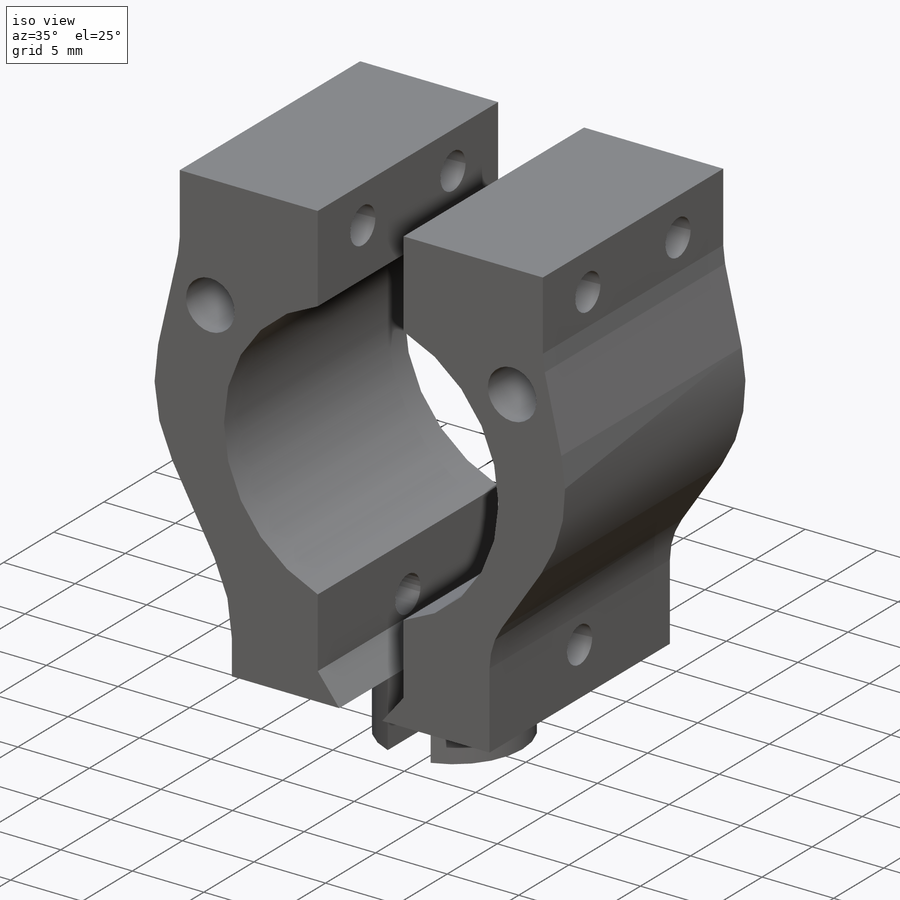
[diagram: iso view]
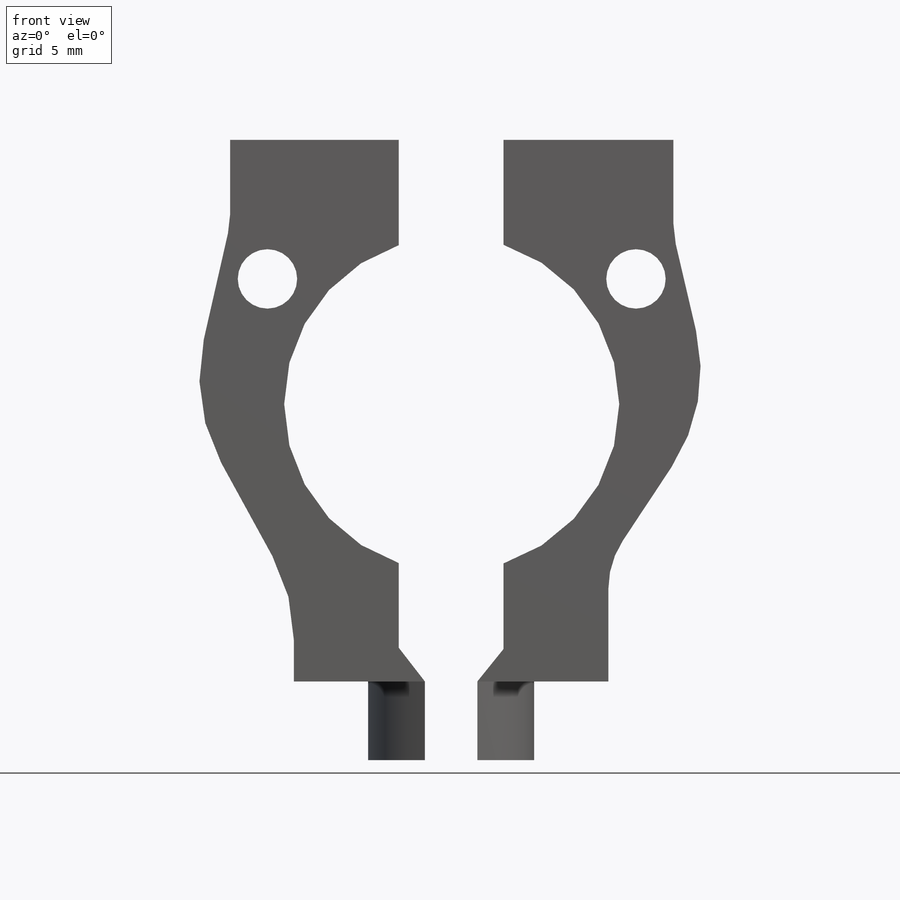
[diagram: front view]
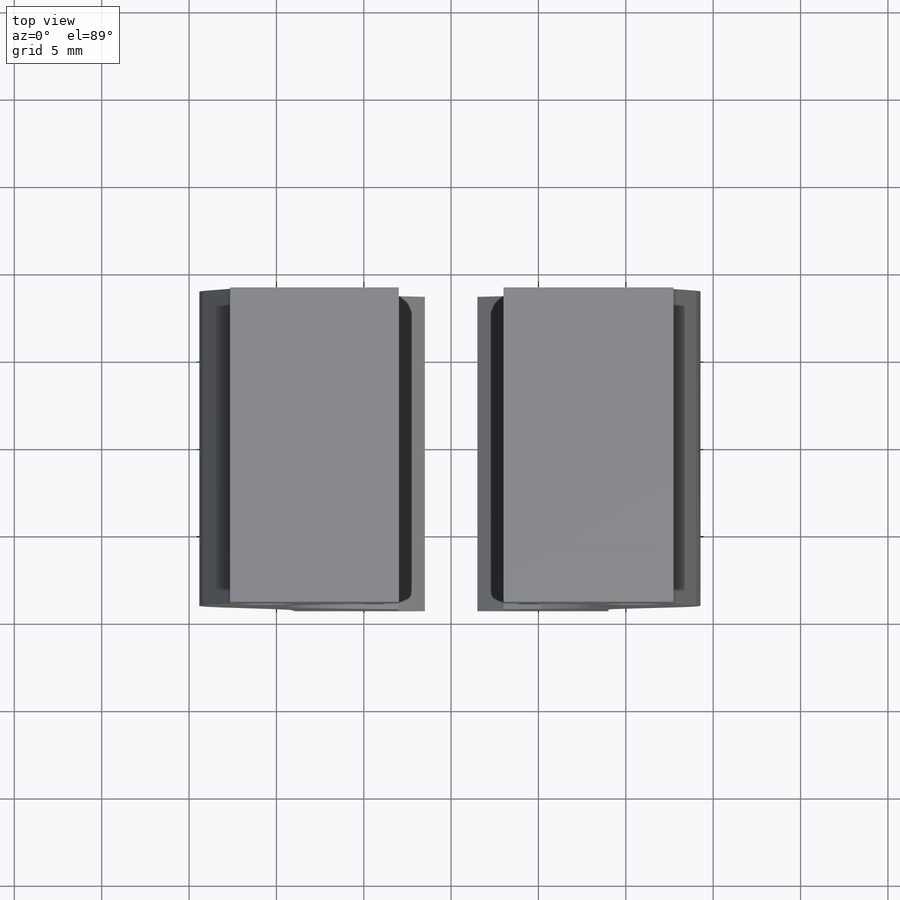
[diagram: top view]
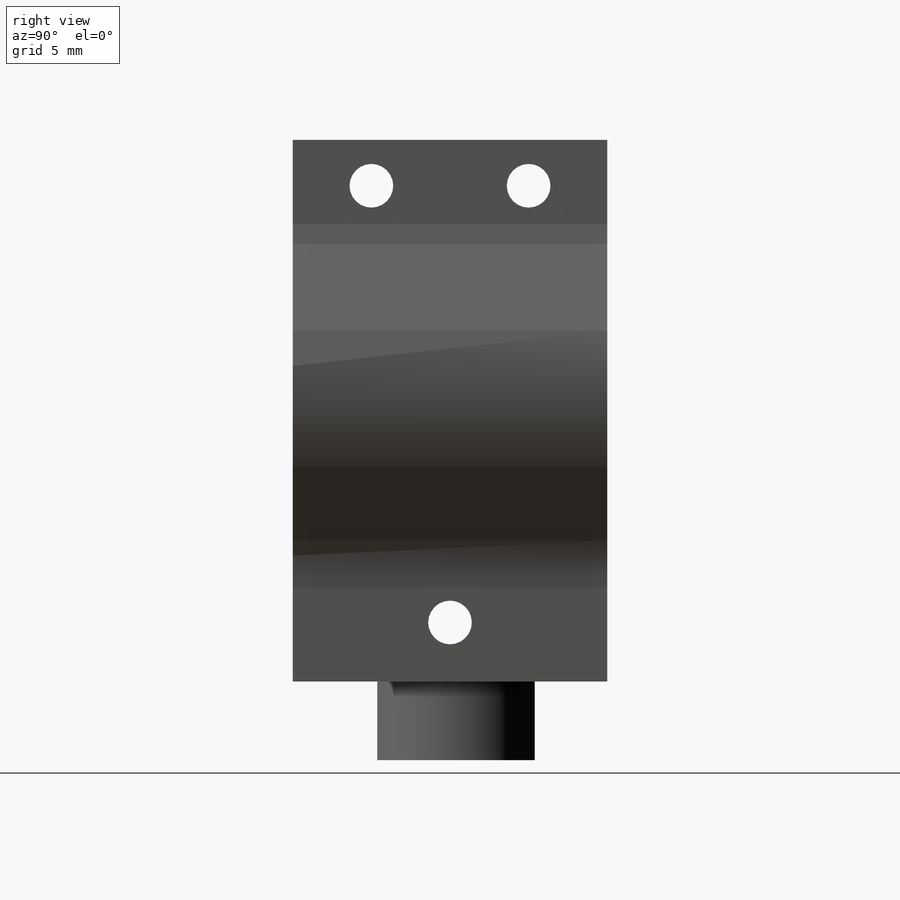
[diagram: right view]
SOLIDWORKS PART (.sldprt)
format: sldprt  version: not decoded by parser v0  size: 386,560 bytes
history: native  units: mm
features: sketch x17, thread x5, extrude x4, cut_extrude x3, hole x3, plane x2, material x1 (+13 scaffold rows collapsed)
feature tree (48):
  scaffold x13  (default folders/planes/origin — collapsed)
  material  "Plain Carbon Steel"
  sketch  "Sketch1"  dims[D1=9.5mm D2=1.5mm]
  plane  "GroundPlane"  Offset=4.5mm
  sketch  "Sketch2"  dims[c1.D1=15.0mm c1.D2=12.5mm c1.D3=25.4mm c1.D4=19.05mm c1.D5=19.05mm c2.D2=~9.891448mm c3.D2=60.0deg c4.D2=~12.46043mm c5.D2=30.0deg c5.D6=15.0mm c6.D6=30.0deg c6.D7=15.0mm c7.D7=30.0deg c7.D8=3.0mm c7.D9=18.0mm c7.D10=12.0mm]
  plane  "TopPlane"  Offset=31.75mm
  extrude  "Extrude1"  Depth=31.75mm
  extrude  "Extrude2"  Depth=4.5mm
  sketch  "Sketch4"  dims[D1=19.177mm]
  cut_extrude  "Magnet Cavity"  [1 undecoded]
  sketch  "Sketch6"
  sketch  "Mount Hole circle"  dims[c1.D1=25.5mm c1.D2=13.0mm c2.D2=~55.801811deg]
  sketch  "Sketch14"
  sketch  "Sketch16"
  hole  "M3x0.5 Tapped Hole1"  Diameter=2.5mm Depth=30mm
  sketch  "3DSketch3"
  sketch  "Sketch18"  dims[hole-wizard template sketch: 61 standard entries collapsed; hole parameters above]
  thread  "Hole Thread6"  Diameter=3mm  [1 undecoded]
  thread  "Hole Thread7"  Diameter=3mm  [1 undecoded]
  thread  "Hole Thread8"  Diameter=3mm  [1 undecoded]
  hole  "M2x0.4 Tapped Hole2"  Diameter=1.6mm Depth=6mm
  sketch  "3DSketch8"
  sketch  "Sketch23"  dims[hole-wizard template sketch: 50 standard entries collapsed; hole parameters above]
  thread  "Hole Thread16"  Diameter=4mm  [1 undecoded]
  thread  "Hole Thread17"  Diameter=4mm  [1 undecoded]
  hole  "M3 Clearance Hole1"  Diameter=3.4mm Depth=18mm
  sketch  "3DSketch9"
  sketch  "Sketch24"  dims[hole-wizard template sketch: 47 standard entries collapsed; hole parameters kept: c15.Hole Depth=18.0mm c15.D3=~14.816244mm c15.Drill Angle=118.0deg]
  sketch  "Trim Sketch"  dims[D1=5.0mm D2=10.0mm D3=5.0mm]
  cut_extrude  "Extrude3"  [1 undecoded]
  sketch  "Sketch26"
  extrude  "Extrude4"  [1 undecoded]
  sketch  "Sketch27"  dims[c1.D2=5.0mm c1.D3=10.0mm c1.D1=6.0mm c2.D2=6.0mm]
  cut_extrude  "Extrude5"  [1 undecoded]
  sketch  "Sketch28"
  extrude  "Extrude6"  [1 undecoded]
decode coverage: 19 of 32 modeling features carry decoded parameters
note: ~ marks probable driven/reference dimensions
note: 10 parameter values undecoded
summary: no parameter record found for 5 features
note: suppression state not decoded; provenance and decode notes live in map.json
